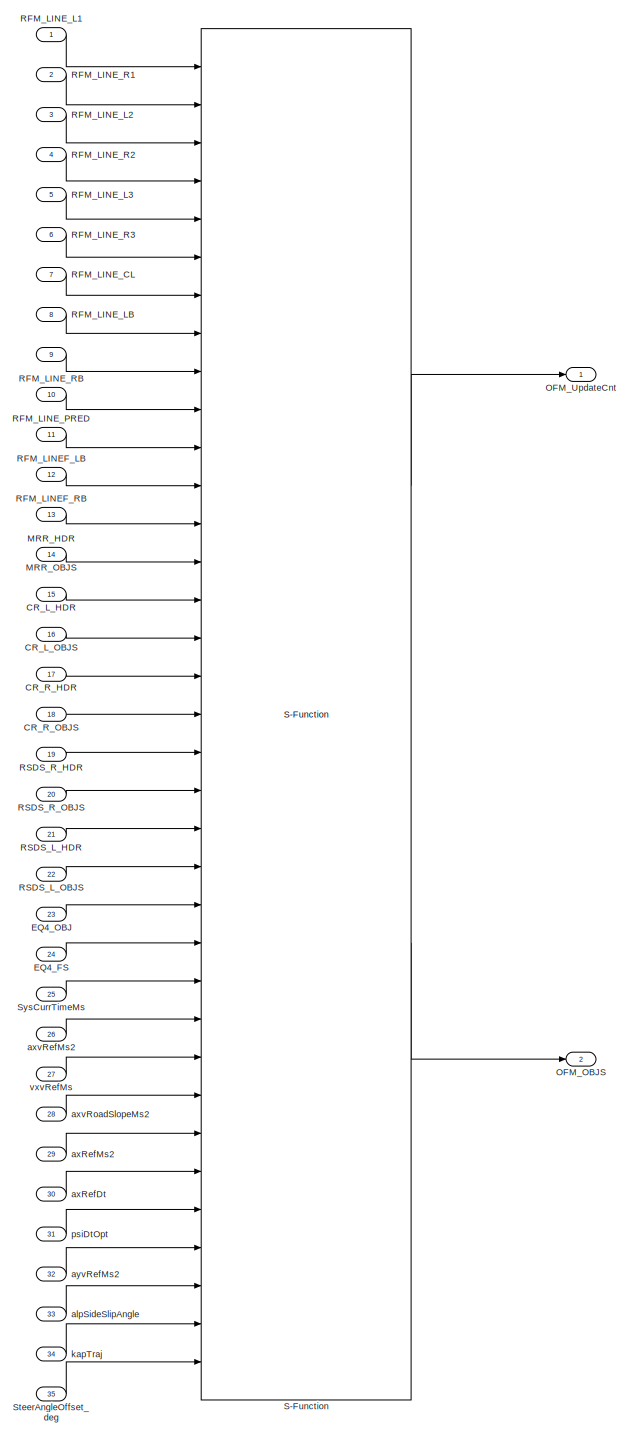
[diagram: root canvas - part 1/2, left side, full height]
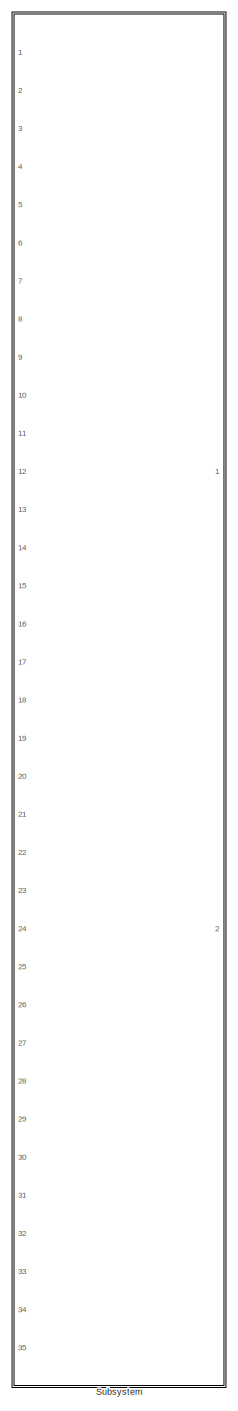
[diagram: root canvas - part 2/2, right side, full height]
MODEL slx_36b21f59c2d5
KIND model
CONFIG AbsTol = auto
CONFIG EnableMultiTasking = off
CONFIG FixedStep = auto
CONFIG InitFcn = , if any(exist('dsmpb_private', 'file') ~= 0), dsmpb_private('dsmpb_mdlclblib', 'Init', bdroot); end,\n
CONFIG MaxStep = auto
CONFIG MinStep = auto
CONFIG PostLoadFcn = if any(exist('dsrtsu_mdlpostloadfcn', 'file') ~= 0), dsrtsu_mdlpostloadfcn('Execute', bdroot); end
CONFIG RelTol = 1e-3
CONFIG SampleTimeConstraint = Unconstrained
CONFIG Solver = VariableStepAuto
CONFIG SolverName = VariableStepAuto
CONFIG StartTime = 0.0
CONFIG StopTime = 10.0
BLOCK [Inport] CR_L_HDR
  BusOutputAsStruct = on
  IconDisplay = Port number
  OutDataTypeStr = Bus: CR_HDR_BUS
  Port = 15
  PortDimensions = 1
BLOCK [Inport] CR_L_OBJS
  BusOutputAsStruct = on
  IconDisplay = Port number
  OutDataTypeStr = Bus: CR_OBJ_BUS
  Port = 16
  PortDimensions = 6
BLOCK [Inport] CR_R_HDR
  BusOutputAsStruct = on
  IconDisplay = Port number
  OutDataTypeStr = Bus: CR_HDR_BUS
  Port = 17
  PortDimensions = 1
BLOCK [Inport] CR_R_OBJS
  BusOutputAsStruct = on
  IconDisplay = Port number
  OutDataTypeStr = Bus: CR_OBJ_BUS
  Port = 18
  PortDimensions = 6
BLOCK [Inport] EQ4_FS
  BusOutputAsStruct = on
  IconDisplay = Port number
  OutDataTypeStr = Bus: EQ4_FS_BUS
  Port = 24
  PortDimensions = 1
BLOCK [Inport] EQ4_OBJ
  BusOutputAsStruct = on
  IconDisplay = Port number
  OutDataTypeStr = Bus: EQ4_OBJ_BUS
  Port = 23
  PortDimensions = 1
BLOCK [Inport] MRR_HDR
  BusOutputAsStruct = on
  IconDisplay = Port number
  OutDataTypeStr = Bus: MRR_HDR_BUS
  Port = 13
  PortDimensions = 1
BLOCK [Inport] MRR_OBJS
  BusOutputAsStruct = on
  IconDisplay = Port number
  OutDataTypeStr = Bus: MRR_OBJ_BUS
  Port = 14
  PortDimensions = 32
BLOCK [Outport] OFM_OBJS
  BusOutputAsStruct = on
  IconDisplay = Port number
  OutDataTypeStr = Bus: OFM_OBJ_BUS
  Port = 2
  PortDimensions = 1
BLOCK [Outport] OFM_UpdateCnt
  BusOutputAsStruct = on
  IconDisplay = Port number
  OutDataTypeStr = uint32
  PortDimensions = 1
BLOCK [Inport] RFM_LINEF_LB
  BusOutputAsStruct = on
  IconDisplay = Port number
  OutDataTypeStr = Bus: RFM_LINE_BUS
  Port = 11
  PortDimensions = 1
BLOCK [Inport] RFM_LINEF_RB
  BusOutputAsStruct = on
  IconDisplay = Port number
  OutDataTypeStr = Bus: RFM_LINE_BUS
  Port = 12
  PortDimensions = 1
BLOCK [Inport] RFM_LINE_CL
  BusOutputAsStruct = on
  IconDisplay = Port number
  OutDataTypeStr = Bus: RFM_LINE_BUS
  Port = 7
  PortDimensions = 1
BLOCK [Inport] RFM_LINE_L1
  BusOutputAsStruct = on
  IconDisplay = Port number
  OutDataTypeStr = Bus: RFM_LINE_BUS
  PortDimensions = 1
BLOCK [Inport] RFM_LINE_L2
  BusOutputAsStruct = on
  IconDisplay = Port number
  OutDataTypeStr = Bus: RFM_LINE_BUS
  Port = 3
  PortDimensions = 1
BLOCK [Inport] RFM_LINE_L3
  BusOutputAsStruct = on
  IconDisplay = Port number
  OutDataTypeStr = Bus: RFM_LINE_BUS
  Port = 5
  PortDimensions = 1
BLOCK [Inport] RFM_LINE_LB
  BusOutputAsStruct = on
  IconDisplay = Port number
  OutDataTypeStr = Bus: RFM_LINE_BUS
  Port = 8
  PortDimensions = 1
BLOCK [Inport] RFM_LINE_PRED
  BusOutputAsStruct = on
  IconDisplay = Port number
  OutDataTypeStr = Bus: RFM_LINE_BUS
  Port = 10
  PortDimensions = 1
BLOCK [Inport] RFM_LINE_R1
  BusOutputAsStruct = on
  IconDisplay = Port number
  OutDataTypeStr = Bus: RFM_LINE_BUS
  Port = 2
  PortDimensions = 1
BLOCK [Inport] RFM_LINE_R2
  BusOutputAsStruct = on
  IconDisplay = Port number
  OutDataTypeStr = Bus: RFM_LINE_BUS
  Port = 4
  PortDimensions = 1
BLOCK [Inport] RFM_LINE_R3
  BusOutputAsStruct = on
  IconDisplay = Port number
  OutDataTypeStr = Bus: RFM_LINE_BUS
  Port = 6
  PortDimensions = 1
BLOCK [Inport] RFM_LINE_RB
  BusOutputAsStruct = on
  IconDisplay = Port number
  OutDataTypeStr = Bus: RFM_LINE_BUS
  Port = 9
  PortDimensions = 1
BLOCK [Inport] RSDS_L_HDR
  BusOutputAsStruct = on
  IconDisplay = Port number
  OutDataTypeStr = Bus: RSDS_HDR_BUS
  Port = 21
  PortDimensions = 1
BLOCK [Inport] RSDS_L_OBJS
  BusOutputAsStruct = on
  IconDisplay = Port number
  OutDataTypeStr = Bus: RSDS_OBJ_BUS
  Port = 22
  PortDimensions = 6
BLOCK [Inport] RSDS_R_HDR
  BusOutputAsStruct = on
  IconDisplay = Port number
  OutDataTypeStr = Bus: RSDS_HDR_BUS
  Port = 19
  PortDimensions = 1
BLOCK [Inport] RSDS_R_OBJS
  BusOutputAsStruct = on
  IconDisplay = Port number
  OutDataTypeStr = Bus: RSDS_OBJ_BUS
  Port = 20
  PortDimensions = 6
BLOCK [S-Function] S-Function
  EnableBusSupport = off
  FunctionName = sfun_FusionObj
  Ports = [35, 2]
  SFcnIsStateOwnerBlock = off
  SFunctionDeploymentMode = off
BLOCK [Inport] SteerAngleOffset_deg
  BusOutputAsStruct = on
  IconDisplay = Port number
  OutDataTypeStr = single
  Port = 35
  PortDimensions = 1
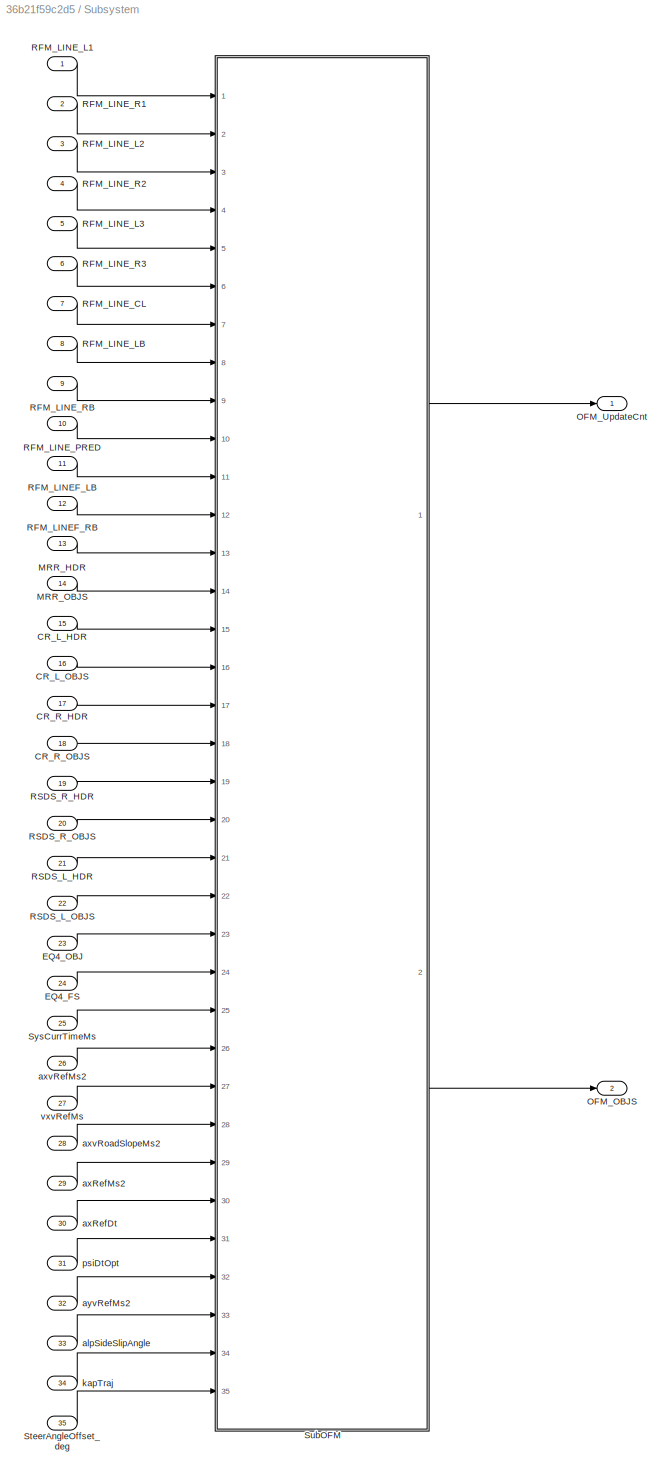
BLOCK [SubSystem] Subsystem
  Commented = on
  Ports = [35, 2]
  RequestExecContextInheritance = off
BLOCK [Inport] Subsystem/CR_L_HDR
  BusOutputAsStruct = on
  IconDisplay = Port number
  OutDataTypeStr = Bus: CR_HDR_BUS
  Port = 15
  PortDimensions = 1
BLOCK [Inport] Subsystem/CR_L_OBJS
  BusOutputAsStruct = on
  IconDisplay = Port number
  OutDataTypeStr = Bus: CR_OBJ_BUS
  Port = 16
  PortDimensions = 6
BLOCK [Inport] Subsystem/CR_R_HDR
  BusOutputAsStruct = on
  IconDisplay = Port number
  OutDataTypeStr = Bus: CR_HDR_BUS
  Port = 17
  PortDimensions = 1
BLOCK [Inport] Subsystem/CR_R_OBJS
  BusOutputAsStruct = on
  IconDisplay = Port number
  OutDataTypeStr = Bus: CR_OBJ_BUS
  Port = 18
  PortDimensions = 6
BLOCK [Inport] Subsystem/EQ4_FS
  BusOutputAsStruct = on
  IconDisplay = Port number
  OutDataTypeStr = Bus: EQ4_FS_BUS
  Port = 24
  PortDimensions = 1
BLOCK [Inport] Subsystem/EQ4_OBJ
  BusOutputAsStruct = on
  IconDisplay = Port number
  OutDataTypeStr = Bus: EQ4_OBJ_BUS
  Port = 23
  PortDimensions = 1
BLOCK [Inport] Subsystem/MRR_HDR
  BusOutputAsStruct = on
  IconDisplay = Port number
  OutDataTypeStr = Bus: MRR_HDR_BUS
  Port = 13
  PortDimensions = 1
BLOCK [Inport] Subsystem/MRR_OBJS
  BusOutputAsStruct = on
  IconDisplay = Port number
  OutDataTypeStr = Bus: MRR_OBJ_BUS
  Port = 14
  PortDimensions = 32
BLOCK [Outport] Subsystem/OFM_OBJS
  BusOutputAsStruct = on
  IconDisplay = Port number
  OutDataTypeStr = Bus: OFM_OBJ_BUS
  Port = 2
  PortDimensions = 1
BLOCK [Outport] Subsystem/OFM_UpdateCnt
  BusOutputAsStruct = on
  IconDisplay = Port number
  OutDataTypeStr = uint32
  PortDimensions = 1
BLOCK [Inport] Subsystem/RFM_LINEF_LB
  BusOutputAsStruct = on
  IconDisplay = Port number
  OutDataTypeStr = Bus: RFM_LINE_BUS
  Port = 11
  PortDimensions = 1
BLOCK [Inport] Subsystem/RFM_LINEF_RB
  BusOutputAsStruct = on
  IconDisplay = Port number
  OutDataTypeStr = Bus: RFM_LINE_BUS
  Port = 12
  PortDimensions = 1
BLOCK [Inport] Subsystem/RFM_LINE_CL
  BusOutputAsStruct = on
  IconDisplay = Port number
  OutDataTypeStr = Bus: RFM_LINE_BUS
  Port = 7
  PortDimensions = 1
BLOCK [Inport] Subsystem/RFM_LINE_L1
  BusOutputAsStruct = on
  IconDisplay = Port number
  OutDataTypeStr = Bus: RFM_LINE_BUS
  PortDimensions = 1
BLOCK [Inport] Subsystem/RFM_LINE_L2
  BusOutputAsStruct = on
  IconDisplay = Port number
  OutDataTypeStr = Bus: RFM_LINE_BUS
  Port = 3
  PortDimensions = 1
BLOCK [Inport] Subsystem/RFM_LINE_L3
  BusOutputAsStruct = on
  IconDisplay = Port number
  OutDataTypeStr = Bus: RFM_LINE_BUS
  Port = 5
  PortDimensions = 1
BLOCK [Inport] Subsystem/RFM_LINE_LB
  BusOutputAsStruct = on
  IconDisplay = Port number
  OutDataTypeStr = Bus: RFM_LINE_BUS
  Port = 8
  PortDimensions = 1
BLOCK [Inport] Subsystem/RFM_LINE_PRED
  BusOutputAsStruct = on
  IconDisplay = Port number
  OutDataTypeStr = Bus: RFM_LINE_BUS
  Port = 10
  PortDimensions = 1
BLOCK [Inport] Subsystem/RFM_LINE_R1
  BusOutputAsStruct = on
  IconDisplay = Port number
  OutDataTypeStr = Bus: RFM_LINE_BUS
  Port = 2
  PortDimensions = 1
BLOCK [Inport] Subsystem/RFM_LINE_R2
  BusOutputAsStruct = on
  IconDisplay = Port number
  OutDataTypeStr = Bus: RFM_LINE_BUS
  Port = 4
  PortDimensions = 1
BLOCK [Inport] Subsystem/RFM_LINE_R3
  BusOutputAsStruct = on
  IconDisplay = Port number
  OutDataTypeStr = Bus: RFM_LINE_BUS
  Port = 6
  PortDimensions = 1
BLOCK [Inport] Subsystem/RFM_LINE_RB
  BusOutputAsStruct = on
  IconDisplay = Port number
  OutDataTypeStr = Bus: RFM_LINE_BUS
  Port = 9
  PortDimensions = 1
BLOCK [Inport] Subsystem/RSDS_L_HDR
  BusOutputAsStruct = on
  IconDisplay = Port number
  OutDataTypeStr = Bus: RSDS_HDR_BUS
  Port = 21
  PortDimensions = 1
BLOCK [Inport] Subsystem/RSDS_L_OBJS
  BusOutputAsStruct = on
  IconDisplay = Port number
  OutDataTypeStr = Bus: RSDS_OBJ_BUS
  Port = 22
  PortDimensions = 6
BLOCK [Inport] Subsystem/RSDS_R_HDR
  BusOutputAsStruct = on
  IconDisplay = Port number
  OutDataTypeStr = Bus: RSDS_HDR_BUS
  Port = 19
  PortDimensions = 1
BLOCK [Inport] Subsystem/RSDS_R_OBJS
  BusOutputAsStruct = on
  IconDisplay = Port number
  OutDataTypeStr = Bus: RSDS_OBJ_BUS
  Port = 20
  PortDimensions = 6
BLOCK [Inport] Subsystem/SteerAngleOffset_deg
  BusOutputAsStruct = on
  IconDisplay = Port number
  OutDataTypeStr = single
  Port = 35
  PortDimensions = 1
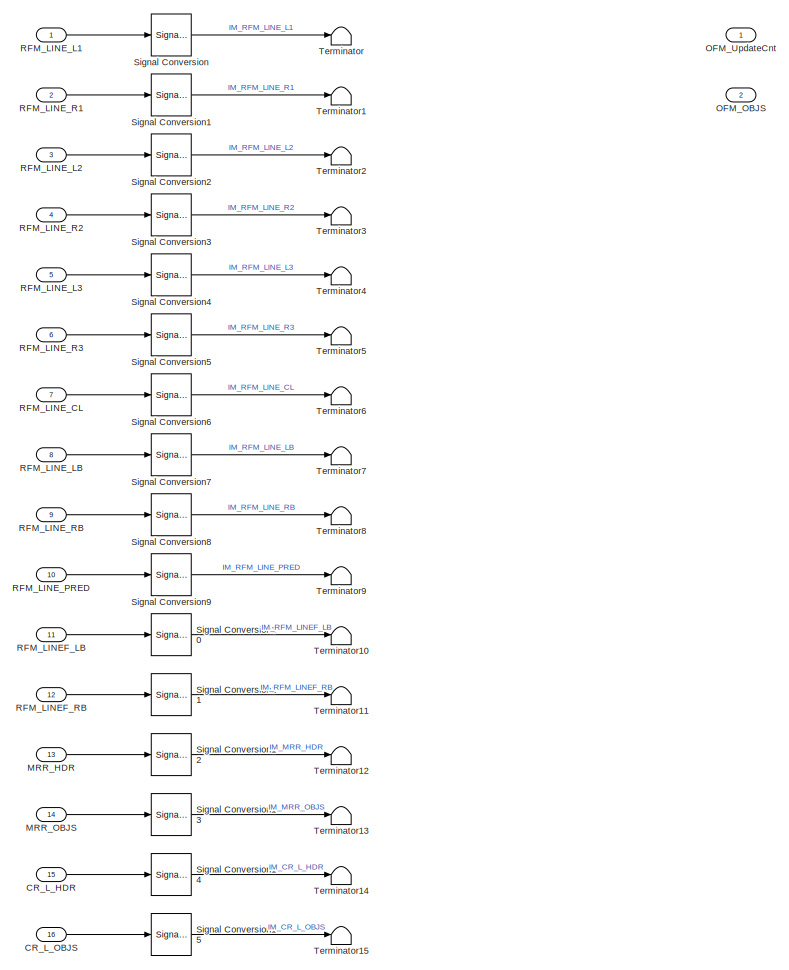
[diagram: Subsystem/SubOFM - part 1/2, full width, top band]
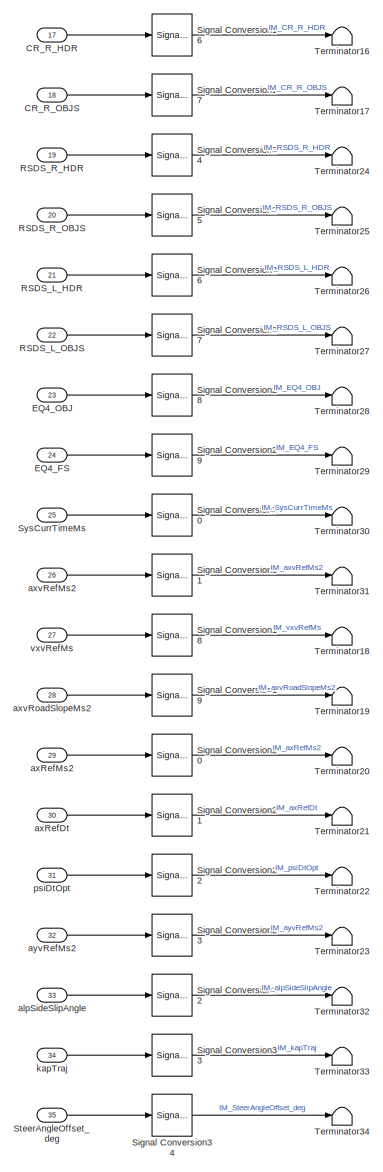
[diagram: Subsystem/SubOFM - part 2/2, bottom left region]
BLOCK [SubSystem] Subsystem/SubOFM
  Ports = [35, 2]
  RTWFcnNameOpts = Use subsystem name
  RTWFileNameOpts = Use function name
  RTWSystemCode = Reusable function
  RequestExecContextInheritance = off
  TreatAsAtomicUnit = on
BLOCK [Inport] Subsystem/SubOFM/CR_L_HDR
  BusOutputAsStruct = on
  IconDisplay = Port number
  OutDataTypeStr = Bus: CR_HDR_BUS
  Port = 15
  PortDimensions = 1
BLOCK [Inport] Subsystem/SubOFM/CR_L_OBJS
  BusOutputAsStruct = on
  IconDisplay = Port number
  OutDataTypeStr = Bus: CR_OBJ_BUS
  Port = 16
  PortDimensions = 6
BLOCK [Inport] Subsystem/SubOFM/CR_R_HDR
  BusOutputAsStruct = on
  IconDisplay = Port number
  OutDataTypeStr = Bus: CR_HDR_BUS
  Port = 17
  PortDimensions = 1
BLOCK [Inport] Subsystem/SubOFM/CR_R_OBJS
  BusOutputAsStruct = on
  IconDisplay = Port number
  OutDataTypeStr = Bus: CR_OBJ_BUS
  Port = 18
  PortDimensions = 6
BLOCK [Inport] Subsystem/SubOFM/EQ4_FS
  BusOutputAsStruct = on
  IconDisplay = Port number
  OutDataTypeStr = Bus: EQ4_FS_BUS
  Port = 24
  PortDimensions = 1
BLOCK [Inport] Subsystem/SubOFM/EQ4_OBJ
  BusOutputAsStruct = on
  IconDisplay = Port number
  OutDataTypeStr = Bus: EQ4_OBJ_BUS
  Port = 23
  PortDimensions = 1
BLOCK [Inport] Subsystem/SubOFM/MRR_HDR
  BusOutputAsStruct = on
  IconDisplay = Port number
  OutDataTypeStr = Bus: MRR_HDR_BUS
  Port = 13
  PortDimensions = 1
BLOCK [Inport] Subsystem/SubOFM/MRR_OBJS
  BusOutputAsStruct = on
  IconDisplay = Port number
  OutDataTypeStr = Bus: MRR_OBJ_BUS
  Port = 14
  PortDimensions = 32
BLOCK [Outport] Subsystem/SubOFM/OFM_OBJS
  BusOutputAsStruct = on
  IconDisplay = Port number
  OutDataTypeStr = Bus: OFM_OBJ_BUS
  Port = 2
  PortDimensions = 1
BLOCK [Outport] Subsystem/SubOFM/OFM_UpdateCnt
  BusOutputAsStruct = on
  IconDisplay = Port number
  OutDataTypeStr = uint32
  PortDimensions = 1
BLOCK [Inport] Subsystem/SubOFM/RFM_LINEF_LB
  BusOutputAsStruct = on
  IconDisplay = Port number
  OutDataTypeStr = Bus: RFM_LINE_BUS
  Port = 11
  PortDimensions = 1
BLOCK [Inport] Subsystem/SubOFM/RFM_LINEF_RB
  BusOutputAsStruct = on
  IconDisplay = Port number
  OutDataTypeStr = Bus: RFM_LINE_BUS
  Port = 12
  PortDimensions = 1
BLOCK [Inport] Subsystem/SubOFM/RFM_LINE_CL
  BusOutputAsStruct = on
  IconDisplay = Port number
  OutDataTypeStr = Bus: RFM_LINE_BUS
  Port = 7
  PortDimensions = 1
BLOCK [Inport] Subsystem/SubOFM/RFM_LINE_L1
  BusOutputAsStruct = on
  IconDisplay = Port number
  OutDataTypeStr = Bus: RFM_LINE_BUS
  PortDimensions = 1
BLOCK [Inport] Subsystem/SubOFM/RFM_LINE_L2
  BusOutputAsStruct = on
  IconDisplay = Port number
  OutDataTypeStr = Bus: RFM_LINE_BUS
  Port = 3
  PortDimensions = 1
BLOCK [Inport] Subsystem/SubOFM/RFM_LINE_L3
  BusOutputAsStruct = on
  IconDisplay = Port number
  OutDataTypeStr = Bus: RFM_LINE_BUS
  Port = 5
  PortDimensions = 1
BLOCK [Inport] Subsystem/SubOFM/RFM_LINE_LB
  BusOutputAsStruct = on
  IconDisplay = Port number
  OutDataTypeStr = Bus: RFM_LINE_BUS
  Port = 8
  PortDimensions = 1
BLOCK [Inport] Subsystem/SubOFM/RFM_LINE_PRED
  BusOutputAsStruct = on
  IconDisplay = Port number
  OutDataTypeStr = Bus: RFM_LINE_BUS
  Port = 10
  PortDimensions = 1
BLOCK [Inport] Subsystem/SubOFM/RFM_LINE_R1
  BusOutputAsStruct = on
  IconDisplay = Port number
  OutDataTypeStr = Bus: RFM_LINE_BUS
  Port = 2
  PortDimensions = 1
BLOCK [Inport] Subsystem/SubOFM/RFM_LINE_R2
  BusOutputAsStruct = on
  IconDisplay = Port number
  OutDataTypeStr = Bus: RFM_LINE_BUS
  Port = 4
  PortDimensions = 1
BLOCK [Inport] Subsystem/SubOFM/RFM_LINE_R3
  BusOutputAsStruct = on
  IconDisplay = Port number
  OutDataTypeStr = Bus: RFM_LINE_BUS
  Port = 6
  PortDimensions = 1
BLOCK [Inport] Subsystem/SubOFM/RFM_LINE_RB
  BusOutputAsStruct = on
  IconDisplay = Port number
  OutDataTypeStr = Bus: RFM_LINE_BUS
  Port = 9
  PortDimensions = 1
BLOCK [Inport] Subsystem/SubOFM/RSDS_L_HDR
  BusOutputAsStruct = on
  IconDisplay = Port number
  OutDataTypeStr = Bus: RSDS_HDR_BUS
  Port = 21
  PortDimensions = 1
BLOCK [Inport] Subsystem/SubOFM/RSDS_L_OBJS
  BusOutputAsStruct = on
  IconDisplay = Port number
  OutDataTypeStr = Bus: RSDS_OBJ_BUS
  Port = 22
  PortDimensions = 6
BLOCK [Inport] Subsystem/SubOFM/RSDS_R_HDR
  BusOutputAsStruct = on
  IconDisplay = Port number
  OutDataTypeStr = Bus: RSDS_HDR_BUS
  Port = 19
  PortDimensions = 1
BLOCK [Inport] Subsystem/SubOFM/RSDS_R_OBJS
  BusOutputAsStruct = on
  IconDisplay = Port number
  OutDataTypeStr = Bus: RSDS_OBJ_BUS
  Port = 20
  PortDimensions = 6
BLOCK [SignalConversion] Subsystem/SubOFM/Signal Conversion
  OverrideOpt = off
BLOCK [SignalConversion] Subsystem/SubOFM/Signal Conversion1
  OverrideOpt = off
BLOCK [SignalConversion] Subsystem/SubOFM/Signal Conversion10
  OverrideOpt = off
BLOCK [SignalConversion] Subsystem/SubOFM/Signal Conversion11
  OverrideOpt = off
BLOCK [SignalConversion] Subsystem/SubOFM/Signal Conversion12
  OverrideOpt = off
BLOCK [SignalConversion] Subsystem/SubOFM/Signal Conversion13
  OverrideOpt = off
BLOCK [SignalConversion] Subsystem/SubOFM/Signal Conversion14
  OverrideOpt = off
BLOCK [SignalConversion] Subsystem/SubOFM/Signal Conversion15
  OverrideOpt = off
BLOCK [SignalConversion] Subsystem/SubOFM/Signal Conversion16
  OverrideOpt = off
BLOCK [SignalConversion] Subsystem/SubOFM/Signal Conversion17
  OverrideOpt = off
BLOCK [SignalConversion] Subsystem/SubOFM/Signal Conversion18
  OverrideOpt = off
BLOCK [SignalConversion] Subsystem/SubOFM/Signal Conversion19
  OverrideOpt = off
BLOCK [SignalConversion] Subsystem/SubOFM/Signal Conversion2
  OverrideOpt = off
BLOCK [SignalConversion] Subsystem/SubOFM/Signal Conversion20
  OverrideOpt = off
BLOCK [SignalConversion] Subsystem/SubOFM/Signal Conversion21
  OverrideOpt = off
BLOCK [SignalConversion] Subsystem/SubOFM/Signal Conversion22
  OverrideOpt = off
BLOCK [SignalConversion] Subsystem/SubOFM/Signal Conversion23
  OverrideOpt = off
BLOCK [SignalConversion] Subsystem/SubOFM/Signal Conversion24
  OverrideOpt = off
BLOCK [SignalConversion] Subsystem/SubOFM/Signal Conversion25
  OverrideOpt = off
BLOCK [SignalConversion] Subsystem/SubOFM/Signal Conversion26
  OverrideOpt = off
BLOCK [SignalConversion] Subsystem/SubOFM/Signal Conversion27
  OverrideOpt = off
BLOCK [SignalConversion] Subsystem/SubOFM/Signal Conversion28
  OverrideOpt = off
BLOCK [SignalConversion] Subsystem/SubOFM/Signal Conversion29
  OverrideOpt = off
BLOCK [SignalConversion] Subsystem/SubOFM/Signal Conversion3
  OverrideOpt = off
BLOCK [SignalConversion] Subsystem/SubOFM/Signal Conversion30
  OverrideOpt = off
BLOCK [SignalConversion] Subsystem/SubOFM/Signal Conversion31
  OverrideOpt = off
BLOCK [SignalConversion] Subsystem/SubOFM/Signal Conversion32
  OverrideOpt = off
BLOCK [SignalConversion] Subsystem/SubOFM/Signal Conversion33
  OverrideOpt = off
BLOCK [SignalConversion] Subsystem/SubOFM/Signal Conversion34
  OverrideOpt = off
BLOCK [SignalConversion] Subsystem/SubOFM/Signal Conversion4
  OverrideOpt = off
BLOCK [SignalConversion] Subsystem/SubOFM/Signal Conversion5
  OverrideOpt = off
BLOCK [SignalConversion] Subsystem/SubOFM/Signal Conversion6
  OverrideOpt = off
BLOCK [SignalConversion] Subsystem/SubOFM/Signal Conversion7
  OverrideOpt = off
BLOCK [SignalConversion] Subsystem/SubOFM/Signal Conversion8
  OverrideOpt = off
BLOCK [SignalConversion] Subsystem/SubOFM/Signal Conversion9
  OverrideOpt = off
BLOCK [Inport] Subsystem/SubOFM/SteerAngleOffset_deg
  BusOutputAsStruct = on
  IconDisplay = Port number
  OutDataTypeStr = single
  Port = 35
  PortDimensions = 1
BLOCK [Inport] Subsystem/SubOFM/SysCurrTimeMs
  BusOutputAsStruct = on
  IconDisplay = Port number
  OutDataTypeStr = uint32
  Port = 25
  PortDimensions = 1
BLOCK [Terminator] Subsystem/SubOFM/Terminator
BLOCK [Terminator] Subsystem/SubOFM/Terminator1
BLOCK [Terminator] Subsystem/SubOFM/Terminator10
BLOCK [Terminator] Subsystem/SubOFM/Terminator11
BLOCK [Terminator] Subsystem/SubOFM/Terminator12
BLOCK [Terminator] Subsystem/SubOFM/Terminator13
BLOCK [Terminator] Subsystem/SubOFM/Terminator14
BLOCK [Terminator] Subsystem/SubOFM/Terminator15
BLOCK [Terminator] Subsystem/SubOFM/Terminator16
BLOCK [Terminator] Subsystem/SubOFM/Terminator17
BLOCK [Terminator] Subsystem/SubOFM/Terminator18
BLOCK [Terminator] Subsystem/SubOFM/Terminator19
BLOCK [Terminator] Subsystem/SubOFM/Terminator2
BLOCK [Terminator] Subsystem/SubOFM/Terminator20
BLOCK [Terminator] Subsystem/SubOFM/Terminator21
BLOCK [Terminator] Subsystem/SubOFM/Terminator22
BLOCK [Terminator] Subsystem/SubOFM/Terminator23
BLOCK [Terminator] Subsystem/SubOFM/Terminator24
BLOCK [Terminator] Subsystem/SubOFM/Terminator25
BLOCK [Terminator] Subsystem/SubOFM/Terminator26
BLOCK [Terminator] Subsystem/SubOFM/Terminator27
BLOCK [Terminator] Subsystem/SubOFM/Terminator28
BLOCK [Terminator] Subsystem/SubOFM/Terminator29
BLOCK [Terminator] Subsystem/SubOFM/Terminator3
BLOCK [Terminator] Subsystem/SubOFM/Terminator30
BLOCK [Terminator] Subsystem/SubOFM/Terminator31
BLOCK [Terminator] Subsystem/SubOFM/Terminator32
BLOCK [Terminator] Subsystem/SubOFM/Terminator33
BLOCK [Terminator] Subsystem/SubOFM/Terminator34
BLOCK [Terminator] Subsystem/SubOFM/Terminator4
BLOCK [Terminator] Subsystem/SubOFM/Terminator5
BLOCK [Terminator] Subsystem/SubOFM/Terminator6
BLOCK [Terminator] Subsystem/SubOFM/Terminator7
BLOCK [Terminator] Subsystem/SubOFM/Terminator8
BLOCK [Terminator] Subsystem/SubOFM/Terminator9
BLOCK [Inport] Subsystem/SubOFM/alpSideSlipAngle
  BusOutputAsStruct = on
  IconDisplay = Port number
  OutDataTypeStr = single
  Port = 33
  PortDimensions = 1
BLOCK [Inport] Subsystem/SubOFM/axRefDt
  BusOutputAsStruct = on
  IconDisplay = Port number
  OutDataTypeStr = single
  Port = 30
  PortDimensions = 1
BLOCK [Inport] Subsystem/SubOFM/axRefMs2
  BusOutputAsStruct = on
  IconDisplay = Port number
  OutDataTypeStr = single
  Port = 29
  PortDimensions = 1
BLOCK [Inport] Subsystem/SubOFM/axvRefMs2
  BusOutputAsStruct = on
  IconDisplay = Port number
  OutDataTypeStr = single
  Port = 26
  PortDimensions = 1
BLOCK [Inport] Subsystem/SubOFM/axvRoadSlopeMs2
  BusOutputAsStruct = on
  IconDisplay = Port number
  OutDataTypeStr = single
  Port = 28
  PortDimensions = 1
BLOCK [Inport] Subsystem/SubOFM/ayvRefMs2
  BusOutputAsStruct = on
  IconDisplay = Port number
  OutDataTypeStr = single
  Port = 32
  PortDimensions = 1
BLOCK [Inport] Subsystem/SubOFM/kapTraj
  BusOutputAsStruct = on
  IconDisplay = Port number
  OutDataTypeStr = single
  Port = 34
  PortDimensions = 1
BLOCK [Inport] Subsystem/SubOFM/psiDtOpt
  BusOutputAsStruct = on
  IconDisplay = Port number
  OutDataTypeStr = single
  Port = 31
  PortDimensions = 1
BLOCK [Inport] Subsystem/SubOFM/vxvRefMs
  BusOutputAsStruct = on
  IconDisplay = Port number
  OutDataTypeStr = single
  Port = 27
  PortDimensions = 1
BLOCK [Inport] Subsystem/SysCurrTimeMs
  BusOutputAsStruct = on
  IconDisplay = Port number
  OutDataTypeStr = uint32
  Port = 25
  PortDimensions = 1
BLOCK [Inport] Subsystem/alpSideSlipAngle
  BusOutputAsStruct = on
  IconDisplay = Port number
  OutDataTypeStr = single
  Port = 33
  PortDimensions = 1
BLOCK [Inport] Subsystem/axRefDt
  BusOutputAsStruct = on
  IconDisplay = Port number
  OutDataTypeStr = single
  Port = 30
  PortDimensions = 1
BLOCK [Inport] Subsystem/axRefMs2
  BusOutputAsStruct = on
  IconDisplay = Port number
  OutDataTypeStr = single
  Port = 29
  PortDimensions = 1
BLOCK [Inport] Subsystem/axvRefMs2
  BusOutputAsStruct = on
  IconDisplay = Port number
  OutDataTypeStr = single
  Port = 26
  PortDimensions = 1
BLOCK [Inport] Subsystem/axvRoadSlopeMs2
  BusOutputAsStruct = on
  IconDisplay = Port number
  OutDataTypeStr = single
  Port = 28
  PortDimensions = 1
BLOCK [Inport] Subsystem/ayvRefMs2
  BusOutputAsStruct = on
  IconDisplay = Port number
  OutDataTypeStr = single
  Port = 32
  PortDimensions = 1
BLOCK [Inport] Subsystem/kapTraj
  BusOutputAsStruct = on
  IconDisplay = Port number
  OutDataTypeStr = single
  Port = 34
  PortDimensions = 1
BLOCK [Inport] Subsystem/psiDtOpt
  BusOutputAsStruct = on
  IconDisplay = Port number
  OutDataTypeStr = single
  Port = 31
  PortDimensions = 1
BLOCK [Inport] Subsystem/vxvRefMs
  BusOutputAsStruct = on
  IconDisplay = Port number
  OutDataTypeStr = single
  Port = 27
  PortDimensions = 1
BLOCK [Inport] SysCurrTimeMs
  BusOutputAsStruct = on
  IconDisplay = Port number
  OutDataTypeStr = uint32
  Port = 25
  PortDimensions = 1
BLOCK [Inport] alpSideSlipAngle
  BusOutputAsStruct = on
  IconDisplay = Port number
  OutDataTypeStr = single
  Port = 33
  PortDimensions = 1
BLOCK [Inport] axRefDt
  BusOutputAsStruct = on
  IconDisplay = Port number
  OutDataTypeStr = single
  Port = 30
  PortDimensions = 1
BLOCK [Inport] axRefMs2
  BusOutputAsStruct = on
  IconDisplay = Port number
  OutDataTypeStr = single
  Port = 29
  PortDimensions = 1
BLOCK [Inport] axvRefMs2
  BusOutputAsStruct = on
  IconDisplay = Port number
  OutDataTypeStr = single
  Port = 26
  PortDimensions = 1
BLOCK [Inport] axvRoadSlopeMs2
  BusOutputAsStruct = on
  IconDisplay = Port number
  OutDataTypeStr = single
  Port = 28
  PortDimensions = 1
BLOCK [Inport] ayvRefMs2
  BusOutputAsStruct = on
  IconDisplay = Port number
  OutDataTypeStr = single
  Port = 32
  PortDimensions = 1
BLOCK [Inport] kapTraj
  BusOutputAsStruct = on
  IconDisplay = Port number
  OutDataTypeStr = single
  Port = 34
  PortDimensions = 1
BLOCK [Inport] psiDtOpt
  BusOutputAsStruct = on
  IconDisplay = Port number
  OutDataTypeStr = single
  Port = 31
  PortDimensions = 1
BLOCK [Inport] vxvRefMs
  BusOutputAsStruct = on
  IconDisplay = Port number
  OutDataTypeStr = single
  Port = 27
  PortDimensions = 1
LINE CR_L_HDR:1 -> S-Function:15
LINE CR_L_OBJS:1 -> S-Function:16
LINE CR_R_HDR:1 -> S-Function:17
LINE CR_R_OBJS:1 -> S-Function:18
LINE EQ4_FS:1 -> S-Function:24
LINE EQ4_OBJ:1 -> S-Function:23
LINE MRR_HDR:1 -> S-Function:13
LINE MRR_OBJS:1 -> S-Function:14
LINE RFM_LINEF_LB:1 -> S-Function:11
LINE RFM_LINEF_RB:1 -> S-Function:12
LINE RFM_LINE_CL:1 -> S-Function:7
LINE RFM_LINE_L1:1 -> S-Function:1
LINE RFM_LINE_L2:1 -> S-Function:3
LINE RFM_LINE_L3:1 -> S-Function:5
LINE RFM_LINE_LB:1 -> S-Function:8
LINE RFM_LINE_PRED:1 -> S-Function:10
LINE RFM_LINE_R1:1 -> S-Function:2
LINE RFM_LINE_R2:1 -> S-Function:4
LINE RFM_LINE_R3:1 -> S-Function:6
LINE RFM_LINE_RB:1 -> S-Function:9
LINE RSDS_L_HDR:1 -> S-Function:21
LINE RSDS_L_OBJS:1 -> S-Function:22
LINE RSDS_R_HDR:1 -> S-Function:19
LINE RSDS_R_OBJS:1 -> S-Function:20
LINE S-Function:1 -> OFM_UpdateCnt:1
LINE S-Function:2 -> OFM_OBJS:1
LINE SteerAngleOffset_deg:1 -> S-Function:35
LINE Subsystem/CR_L_HDR:1 -> Subsystem/SubOFM:15
LINE Subsystem/CR_L_OBJS:1 -> Subsystem/SubOFM:16
LINE Subsystem/CR_R_HDR:1 -> Subsystem/SubOFM:17
LINE Subsystem/CR_R_OBJS:1 -> Subsystem/SubOFM:18
LINE Subsystem/EQ4_FS:1 -> Subsystem/SubOFM:24
LINE Subsystem/EQ4_OBJ:1 -> Subsystem/SubOFM:23
LINE Subsystem/MRR_HDR:1 -> Subsystem/SubOFM:13
LINE Subsystem/MRR_OBJS:1 -> Subsystem/SubOFM:14
LINE Subsystem/RFM_LINEF_LB:1 -> Subsystem/SubOFM:11
LINE Subsystem/RFM_LINEF_RB:1 -> Subsystem/SubOFM:12
LINE Subsystem/RFM_LINE_CL:1 -> Subsystem/SubOFM:7
LINE Subsystem/RFM_LINE_L1:1 -> Subsystem/SubOFM:1
LINE Subsystem/RFM_LINE_L2:1 -> Subsystem/SubOFM:3
LINE Subsystem/RFM_LINE_L3:1 -> Subsystem/SubOFM:5
LINE Subsystem/RFM_LINE_LB:1 -> Subsystem/SubOFM:8
LINE Subsystem/RFM_LINE_PRED:1 -> Subsystem/SubOFM:10
LINE Subsystem/RFM_LINE_R1:1 -> Subsystem/SubOFM:2
LINE Subsystem/RFM_LINE_R2:1 -> Subsystem/SubOFM:4
LINE Subsystem/RFM_LINE_R3:1 -> Subsystem/SubOFM:6
LINE Subsystem/RFM_LINE_RB:1 -> Subsystem/SubOFM:9
LINE Subsystem/RSDS_L_HDR:1 -> Subsystem/SubOFM:21
LINE Subsystem/RSDS_L_OBJS:1 -> Subsystem/SubOFM:22
LINE Subsystem/RSDS_R_HDR:1 -> Subsystem/SubOFM:19
LINE Subsystem/RSDS_R_OBJS:1 -> Subsystem/SubOFM:20
LINE Subsystem/SteerAngleOffset_deg:1 -> Subsystem/SubOFM:35
LINE Subsystem/SubOFM/CR_L_HDR:1 -> Subsystem/SubOFM/Signal Conversion14:1
LINE Subsystem/SubOFM/CR_L_OBJS:1 -> Subsystem/SubOFM/Signal Conversion15:1
LINE Subsystem/SubOFM/CR_R_HDR:1 -> Subsystem/SubOFM/Signal Conversion16:1
LINE Subsystem/SubOFM/CR_R_OBJS:1 -> Subsystem/SubOFM/Signal Conversion17:1
LINE Subsystem/SubOFM/EQ4_FS:1 -> Subsystem/SubOFM/Signal Conversion29:1
LINE Subsystem/SubOFM/EQ4_OBJ:1 -> Subsystem/SubOFM/Signal Conversion28:1
LINE Subsystem/SubOFM/MRR_HDR:1 -> Subsystem/SubOFM/Signal Conversion12:1
LINE Subsystem/SubOFM/MRR_OBJS:1 -> Subsystem/SubOFM/Signal Conversion13:1
LINE Subsystem/SubOFM/RFM_LINEF_LB:1 -> Subsystem/SubOFM/Signal Conversion10:1
LINE Subsystem/SubOFM/RFM_LINEF_RB:1 -> Subsystem/SubOFM/Signal Conversion11:1
LINE Subsystem/SubOFM/RFM_LINE_CL:1 -> Subsystem/SubOFM/Signal Conversion6:1
LINE Subsystem/SubOFM/RFM_LINE_L1:1 -> Subsystem/SubOFM/Signal Conversion:1
LINE Subsystem/SubOFM/RFM_LINE_L2:1 -> Subsystem/SubOFM/Signal Conversion2:1
LINE Subsystem/SubOFM/RFM_LINE_L3:1 -> Subsystem/SubOFM/Signal Conversion4:1
LINE Subsystem/SubOFM/RFM_LINE_LB:1 -> Subsystem/SubOFM/Signal Conversion7:1
LINE Subsystem/SubOFM/RFM_LINE_PRED:1 -> Subsystem/SubOFM/Signal Conversion9:1
LINE Subsystem/SubOFM/RFM_LINE_R1:1 -> Subsystem/SubOFM/Signal Conversion1:1
LINE Subsystem/SubOFM/RFM_LINE_R2:1 -> Subsystem/SubOFM/Signal Conversion3:1
LINE Subsystem/SubOFM/RFM_LINE_R3:1 -> Subsystem/SubOFM/Signal Conversion5:1
LINE Subsystem/SubOFM/RFM_LINE_RB:1 -> Subsystem/SubOFM/Signal Conversion8:1
LINE Subsystem/SubOFM/RSDS_L_HDR:1 -> Subsystem/SubOFM/Signal Conversion26:1
LINE Subsystem/SubOFM/RSDS_L_OBJS:1 -> Subsystem/SubOFM/Signal Conversion27:1
LINE Subsystem/SubOFM/RSDS_R_HDR:1 -> Subsystem/SubOFM/Signal Conversion24:1
LINE Subsystem/SubOFM/RSDS_R_OBJS:1 -> Subsystem/SubOFM/Signal Conversion25:1
LINE Subsystem/SubOFM/Signal Conversion10:1 -> Subsystem/SubOFM/Terminator10:1
LINE Subsystem/SubOFM/Signal Conversion11:1 -> Subsystem/SubOFM/Terminator11:1
LINE Subsystem/SubOFM/Signal Conversion12:1 -> Subsystem/SubOFM/Terminator12:1
LINE Subsystem/SubOFM/Signal Conversion13:1 -> Subsystem/SubOFM/Terminator13:1
LINE Subsystem/SubOFM/Signal Conversion14:1 -> Subsystem/SubOFM/Terminator14:1
LINE Subsystem/SubOFM/Signal Conversion15:1 -> Subsystem/SubOFM/Terminator15:1
LINE Subsystem/SubOFM/Signal Conversion16:1 -> Subsystem/SubOFM/Terminator16:1
LINE Subsystem/SubOFM/Signal Conversion17:1 -> Subsystem/SubOFM/Terminator17:1
LINE Subsystem/SubOFM/Signal Conversion18:1 -> Subsystem/SubOFM/Terminator18:1
LINE Subsystem/SubOFM/Signal Conversion19:1 -> Subsystem/SubOFM/Terminator19:1
LINE Subsystem/SubOFM/Signal Conversion1:1 -> Subsystem/SubOFM/Terminator1:1
LINE Subsystem/SubOFM/Signal Conversion20:1 -> Subsystem/SubOFM/Terminator20:1
LINE Subsystem/SubOFM/Signal Conversion21:1 -> Subsystem/SubOFM/Terminator21:1
LINE Subsystem/SubOFM/Signal Conversion22:1 -> Subsystem/SubOFM/Terminator22:1
LINE Subsystem/SubOFM/Signal Conversion23:1 -> Subsystem/SubOFM/Terminator23:1
LINE Subsystem/SubOFM/Signal Conversion24:1 -> Subsystem/SubOFM/Terminator24:1
LINE Subsystem/SubOFM/Signal Conversion25:1 -> Subsystem/SubOFM/Terminator25:1
LINE Subsystem/SubOFM/Signal Conversion26:1 -> Subsystem/SubOFM/Terminator26:1
LINE Subsystem/SubOFM/Signal Conversion27:1 -> Subsystem/SubOFM/Terminator27:1
LINE Subsystem/SubOFM/Signal Conversion28:1 -> Subsystem/SubOFM/Terminator28:1
LINE Subsystem/SubOFM/Signal Conversion29:1 -> Subsystem/SubOFM/Terminator29:1
LINE Subsystem/SubOFM/Signal Conversion2:1 -> Subsystem/SubOFM/Terminator2:1
LINE Subsystem/SubOFM/Signal Conversion30:1 -> Subsystem/SubOFM/Terminator30:1
LINE Subsystem/SubOFM/Signal Conversion31:1 -> Subsystem/SubOFM/Terminator31:1
LINE Subsystem/SubOFM/Signal Conversion32:1 -> Subsystem/SubOFM/Terminator32:1
LINE Subsystem/SubOFM/Signal Conversion33:1 -> Subsystem/SubOFM/Terminator33:1
LINE Subsystem/SubOFM/Signal Conversion34:1 -> Subsystem/SubOFM/Terminator34:1
LINE Subsystem/SubOFM/Signal Conversion3:1 -> Subsystem/SubOFM/Terminator3:1
LINE Subsystem/SubOFM/Signal Conversion4:1 -> Subsystem/SubOFM/Terminator4:1
LINE Subsystem/SubOFM/Signal Conversion5:1 -> Subsystem/SubOFM/Terminator5:1
LINE Subsystem/SubOFM/Signal Conversion6:1 -> Subsystem/SubOFM/Terminator6:1
LINE Subsystem/SubOFM/Signal Conversion7:1 -> Subsystem/SubOFM/Terminator7:1
LINE Subsystem/SubOFM/Signal Conversion8:1 -> Subsystem/SubOFM/Terminator8:1
LINE Subsystem/SubOFM/Signal Conversion9:1 -> Subsystem/SubOFM/Terminator9:1
LINE Subsystem/SubOFM/Signal Conversion:1 -> Subsystem/SubOFM/Terminator:1
LINE Subsystem/SubOFM/SteerAngleOffset_deg:1 -> Subsystem/SubOFM/Signal Conversion34:1
LINE Subsystem/SubOFM/SysCurrTimeMs:1 -> Subsystem/SubOFM/Signal Conversion30:1
LINE Subsystem/SubOFM/alpSideSlipAngle:1 -> Subsystem/SubOFM/Signal Conversion32:1
LINE Subsystem/SubOFM/axRefDt:1 -> Subsystem/SubOFM/Signal Conversion21:1
LINE Subsystem/SubOFM/axRefMs2:1 -> Subsystem/SubOFM/Signal Conversion20:1
LINE Subsystem/SubOFM/axvRefMs2:1 -> Subsystem/SubOFM/Signal Conversion31:1
LINE Subsystem/SubOFM/axvRoadSlopeMs2:1 -> Subsystem/SubOFM/Signal Conversion19:1
LINE Subsystem/SubOFM/ayvRefMs2:1 -> Subsystem/SubOFM/Signal Conversion23:1
LINE Subsystem/SubOFM/kapTraj:1 -> Subsystem/SubOFM/Signal Conversion33:1
LINE Subsystem/SubOFM/psiDtOpt:1 -> Subsystem/SubOFM/Signal Conversion22:1
LINE Subsystem/SubOFM/vxvRefMs:1 -> Subsystem/SubOFM/Signal Conversion18:1
LINE Subsystem/SubOFM:1 -> Subsystem/OFM_UpdateCnt:1
LINE Subsystem/SubOFM:2 -> Subsystem/OFM_OBJS:1
LINE Subsystem/SysCurrTimeMs:1 -> Subsystem/SubOFM:25
LINE Subsystem/alpSideSlipAngle:1 -> Subsystem/SubOFM:33
LINE Subsystem/axRefDt:1 -> Subsystem/SubOFM:30
LINE Subsystem/axRefMs2:1 -> Subsystem/SubOFM:29
LINE Subsystem/axvRefMs2:1 -> Subsystem/SubOFM:26
LINE Subsystem/axvRoadSlopeMs2:1 -> Subsystem/SubOFM:28
LINE Subsystem/ayvRefMs2:1 -> Subsystem/SubOFM:32
LINE Subsystem/kapTraj:1 -> Subsystem/SubOFM:34
LINE Subsystem/psiDtOpt:1 -> Subsystem/SubOFM:31
LINE Subsystem/vxvRefMs:1 -> Subsystem/SubOFM:27
LINE SysCurrTimeMs:1 -> S-Function:25
LINE alpSideSlipAngle:1 -> S-Function:33
LINE axRefDt:1 -> S-Function:30
LINE axRefMs2:1 -> S-Function:29
LINE axvRefMs2:1 -> S-Function:26
LINE axvRoadSlopeMs2:1 -> S-Function:28
LINE ayvRefMs2:1 -> S-Function:32
LINE kapTraj:1 -> S-Function:34
LINE psiDtOpt:1 -> S-Function:31
LINE vxvRefMs:1 -> S-Function:27
